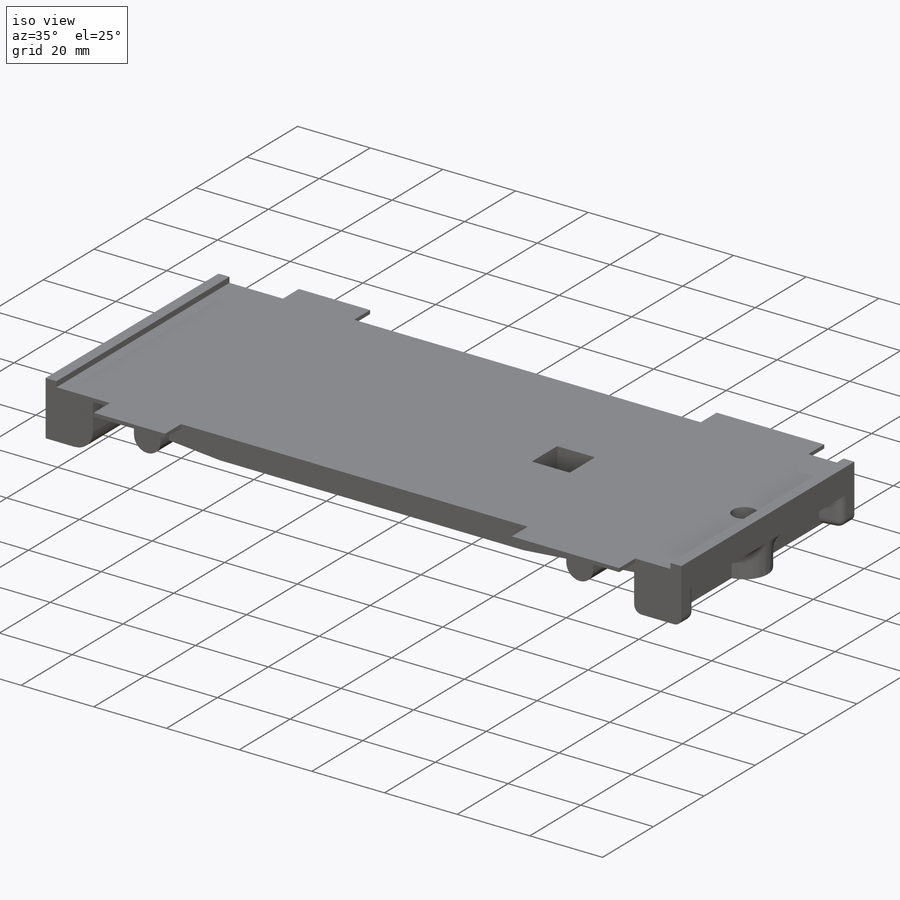
[diagram: iso view]
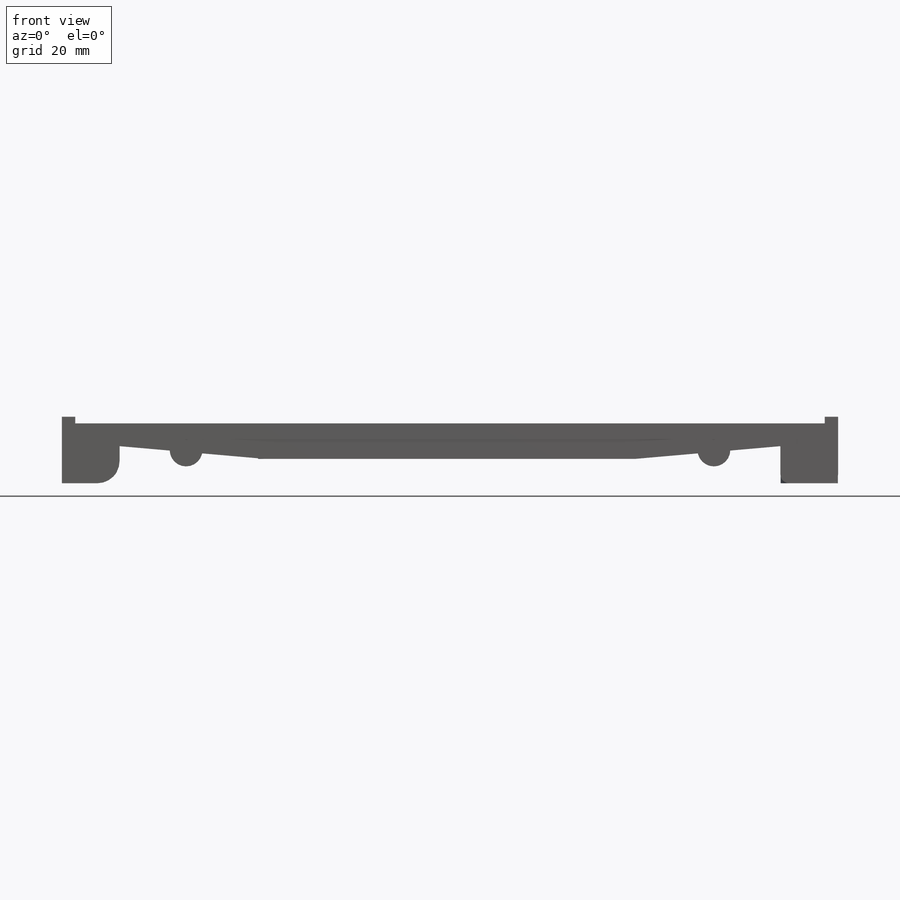
[diagram: front view]
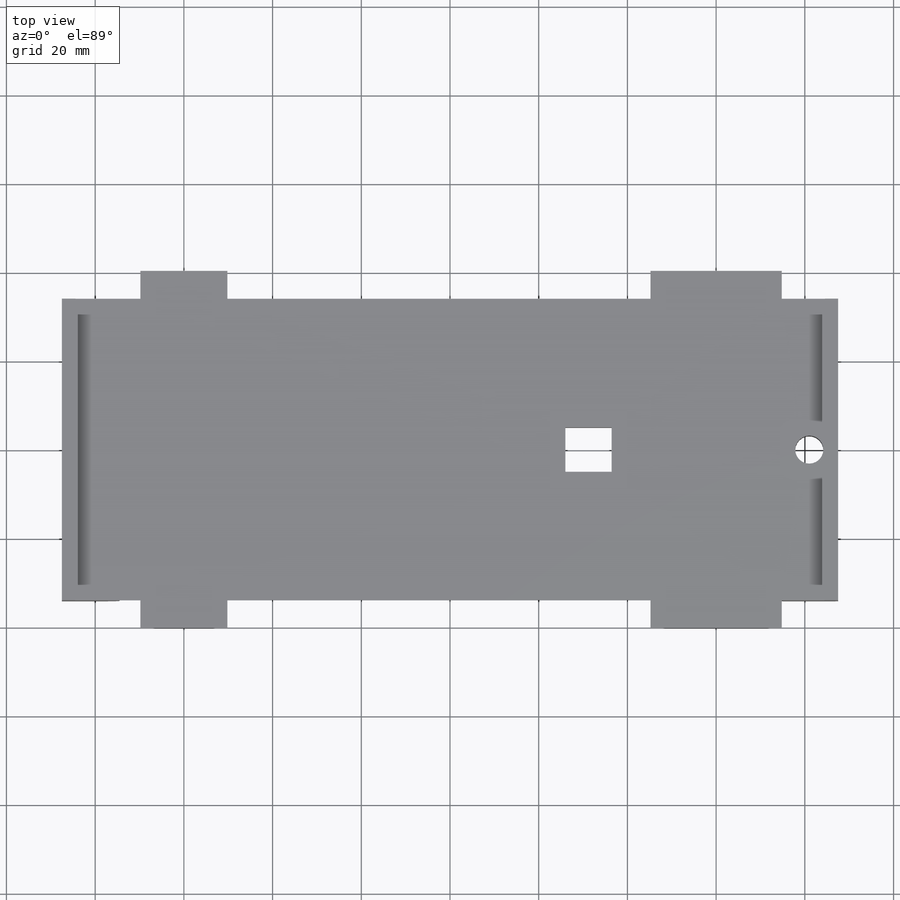
[diagram: top view]
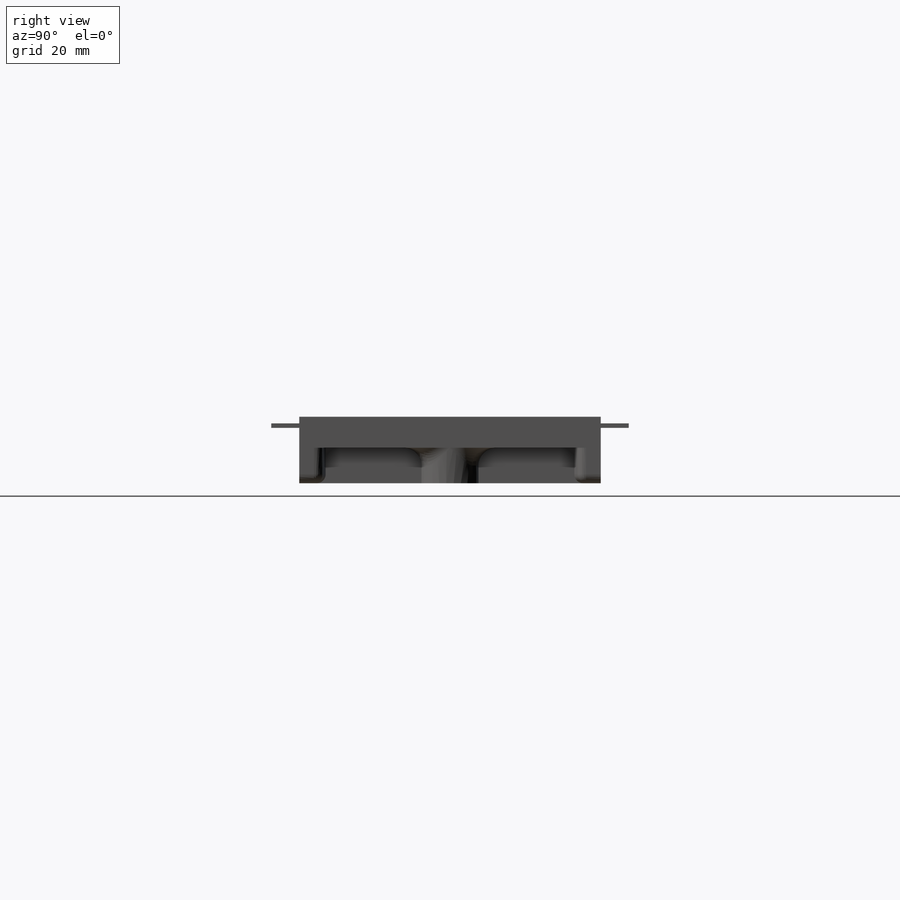
[diagram: right view]
SOLIDWORKS PART (.sldprt)
format: sldprt  version: not decoded by parser v0  size: 630,784 bytes
history: native  units: mm
features: sketch x12, extrude x7, cut_extrude x5, fillet x3, chamfer x3, material x1, pattern_linear x1, mirror x1 (+16 scaffold rows collapsed)
feature tree (49):
  scaffold x16  (default folders/planes/origin — collapsed)
  material  "Material <not specified>"
  sketch  "Sketch1"  dims[D1=175.0mm D2=68.0mm D3=0.2mm D4=0.2mm D5=0.2mm D6=0.2mm D7=0.2mm D8=0.2mm]
  extrude  "Boss-Extrude1"  Depth=1mm
  sketch  "Sketch2"
  extrude  "Boss-Extrude2"  Depth=1.5mm
  sketch  "Sketch3"  dims[c1.D1=3.0mm c1.D2=7.0mm c1.D3=3.0mm c2.D3=5.0deg]
  extrude  "Boss-Extrude3"  Depth=1.5mm
  pattern_linear  "LPattern1"  Count1=3 Count2=3 Spacing1=15mm Spacing2=15mm
  sketch  "Sketch4"  dims[c1.D1=3.4mm c1.D2=~9.360367mm c2.D1=5.0mm c2.D2=2.0mm]
  extrude  "Boss-Extrude4"  Depth=68mm
  fillet  "Fillet1"  Radius=5mm
  sketch  "Sketch5"  dims[D1=28.5mm]
  cut_extrude  "Cut-Extrude1"  Depth=10mm
  sketch  "Sketch6"  dims[c1.D1=3.2mm c1.D3=3.2mm c2.D1=3.2mm c2.D2=4.0mm c2.D3=7.0mm c3.D2=8.0mm]
  extrude  "Boss-Extrude5"  Depth=6.5mm
  mirror  "Mirror1"
  sketch  "Sketch7"  dims[D1=2.5mm D2=6.5mm]
  cut_extrude  "Cut-Extrude2"  Depth=5mm
  chamfer  "Chamfer1"  Distance=3mm Angle=60deg
  sketch  "Sketch8"  dims[D2=6.35mm D3=10.0mm D1=75.0mm]
  cut_extrude  "Cut-Extrude3"  [1 undecoded]
  sketch  "Sketch9"  dims[c1.D1=5.0mm c1.D2=~9.38104mm c2.D2=100.0deg c2.D3=1.0mm c2.D4=1.0mm]
  cut_extrude  "Cut-Extrude6"  Depth=8mm
  fillet  "Fillet2"  Radius=2mm
  fillet  "Fillet3"  Radius=4mm
  sketch  "Sketch10"  dims[D1=30.0mm D2=10.0mm D3=8.0mm]
  cut_extrude  "Cut-Extrude7"  [1 undecoded]
  chamfer  "Chamfer2"  Distance=10mm Angle=45deg
  sketch  "Sketch11"  dims[c1.D3=2.5mm c1.D4=2.5mm c1.D5=~6.673371mm c1.D6=~4.903938mm c1.D1=22.0mm c1.D2=22.0mm c2.D4=40.0mm c2.D5=2.0mm c2.D6=75.0mm]
  extrude  "Boss-Extrude6"  [1 undecoded]
  chamfer  "Chamfer3"  Distance=2mm Angle=60deg
  sketch  "Sketch12"  dims[D1=1.5mm]
  extrude  "Boss-Extrude7"  [1 undecoded]
decode coverage: 26 of 32 modeling features carry decoded parameters
note: ~ marks probable driven/reference dimensions
note: 4 parameter values undecoded
summary: no parameter record found for 4 features
note: suppression state not decoded; provenance and decode notes live in map.json
